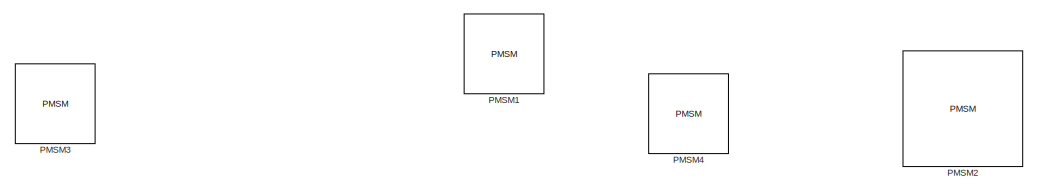
[diagram: root canvas - part 1/4, top center region]
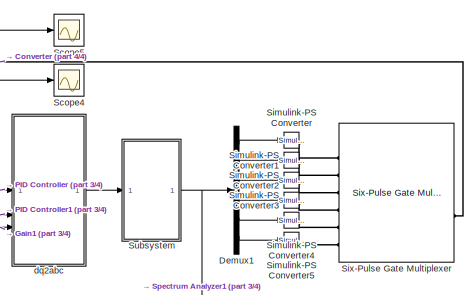
[diagram: root canvas - part 2/4, middle right region]
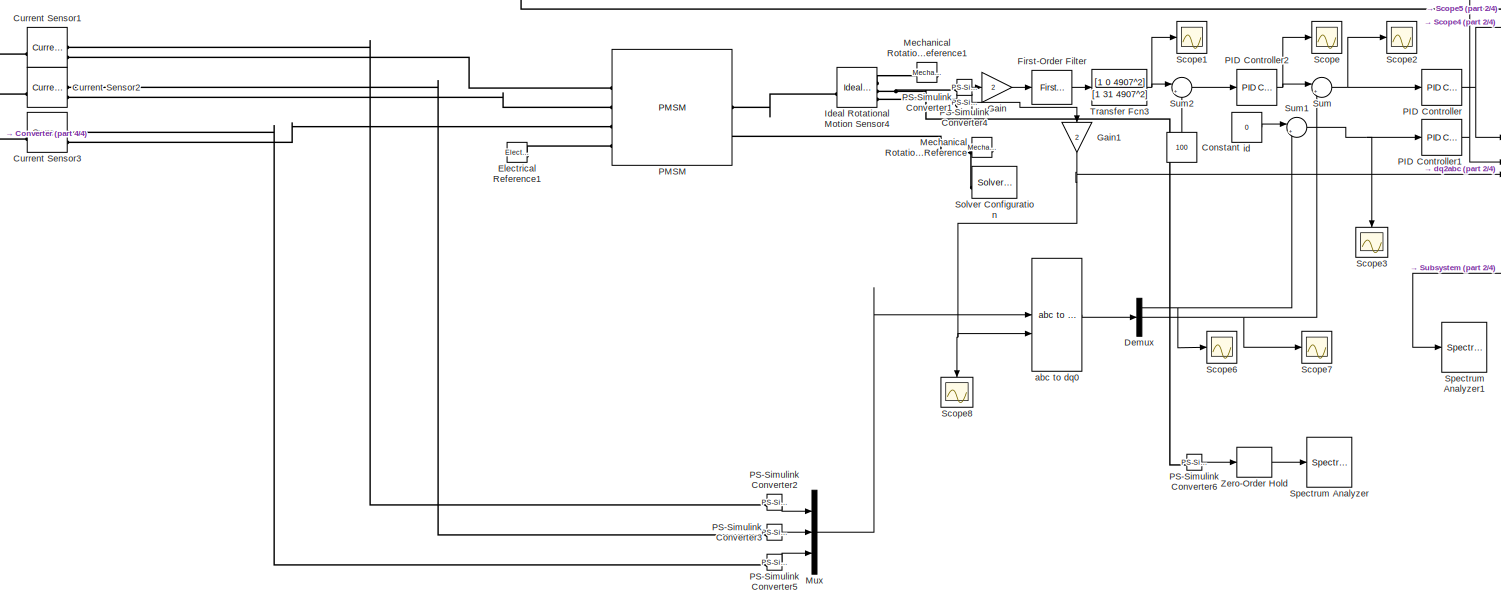
[diagram: root canvas - part 3/4, central region]
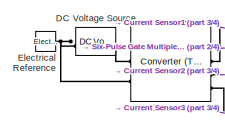
[diagram: root canvas - part 4/4, middle left region]
MODEL slx_4037d44341bd
KIND model
CONFIG AbsTol = auto
CONFIG EnableMultiTasking = off
CONFIG FixedStep = auto
CONFIG MaxStep = auto
CONFIG MinStep = auto
CONFIG RelTol = 1e-3
CONFIG SampleTimeConstraint = Unconstrained
CONFIG SolverName = VariableStepAuto
CONFIG StartTime = 0.0
CONFIG StopTime = 1
BLOCK [Constant] Constant
  NameLocation = right
  Value = 100
BLOCK [Reference] Converter  REF=ee_lib/Semiconductors &
Converters/Converters/Converter
(Three-Phase)
  SourceBlock = ee_lib/Semiconductors &\nConverters/Converters/Converter\n(Three-Phase)
  SourceType = Converter\n(Three-Phase)
BLOCK [Reference] Current Sensor1  REF=fl_lib/Electrical/Electrical Sensors/Current Sensor
  SourceBlock = fl_lib/Electrical/Electrical Sensors/Current Sensor
  SourceType = Current Sensor
BLOCK [Reference] Current Sensor2  REF=fl_lib/Electrical/Electrical Sensors/Current Sensor
  SourceBlock = fl_lib/Electrical/Electrical Sensors/Current Sensor
  SourceType = Current Sensor
BLOCK [Reference] Current Sensor3  REF=fl_lib/Electrical/Electrical Sensors/Current Sensor
  SourceBlock = fl_lib/Electrical/Electrical Sensors/Current Sensor
  SourceType = Current Sensor
BLOCK [Reference] DC Voltage Source  REF=fl_lib/Electrical/Electrical Sources/DC Voltage Source
  NameLocation = top
  SourceBlock = fl_lib/Electrical/Electrical Sources/DC Voltage Source
  SourceType = DC Voltage Source
BLOCK [Demux] Demux
  Outputs = 3
BLOCK [Demux] Demux1
  Outputs = 6
BLOCK [Reference] Electrical Reference  REF=fl_lib/Electrical/Electrical Elements/Electrical Reference
  SourceBlock = fl_lib/Electrical/Electrical Elements/Electrical Reference
  SourceType = Electrical Reference
BLOCK [Reference] Electrical Reference1  REF=fl_lib/Electrical/Electrical Elements/Electrical Reference
  SourceBlock = fl_lib/Electrical/Electrical Elements/Electrical Reference
  SourceType = Electrical Reference
BLOCK [Reference] First-Order Filter  REF=spsFirstOrderFilterLib/First-Order
Filter
  LibrarySourceBlock = sps_lib/Control/Filters/First-Order\nFilter
  SourceBlock = spsFirstOrderFilterLib/First-Order\nFilter
  SourceType = First-Order Filter
BLOCK [Gain] Gain
  Gain = 2
BLOCK [Gain] Gain1
  Gain = 2
  NameLocation = left
BLOCK [Reference] Ideal Rotational Motion Sensor4  REF=fl_lib/Mechanical/Mechanical Sensors/Ideal Rotational
Motion Sensor
  SourceBlock = fl_lib/Mechanical/Mechanical Sensors/Ideal Rotational\nMotion Sensor
  SourceType = Ideal Rotational\nMotion Sensor
BLOCK [Reference] Mechanical Rotational Reference  REF=fl_lib/Mechanical/Rotational Elements/Mechanical
Rotational Reference
  NameLocation = right
  SourceBlock = fl_lib/Mechanical/Rotational Elements/Mechanical\nRotational Reference
  SourceType = Mechanical\nRotational Reference
BLOCK [Reference] Mechanical Rotational Reference1  REF=fl_lib/Mechanical/Rotational Elements/Mechanical
Rotational Reference
  NameLocation = top
  SourceBlock = fl_lib/Mechanical/Rotational Elements/Mechanical\nRotational Reference
  SourceType = Mechanical\nRotational Reference
BLOCK [Mux] Mux
  DisplayOption = bar
  Inputs = 3
BLOCK [Reference] PID Controller  REF=slpidlib/PID Controller
  SourceBlock = slpidlib/PID Controller
  SourceType = PID 1dof
BLOCK [Reference] PID Controller1  REF=slpidlib/PID Controller
  SourceBlock = slpidlib/PID Controller
  SourceType = PID 1dof
BLOCK [Reference] PID Controller2  REF=slpidlib/PID Controller
  SourceBlock = slpidlib/PID Controller
  SourceType = PID 1dof
BLOCK [Reference] PMSM  REF=ee_lib/Electromechanical/Permanent Magnet/PMSM
  SourceBlock = ee_lib/Electromechanical/Permanent Magnet/PMSM
  SourceType = PMSM
BLOCK [Reference] PMSM1  REF=ee_lib/Electromechanical/Permanent Magnet/PMSM
  SourceBlock = ee_lib/Electromechanical/Permanent Magnet/PMSM
  SourceType = PMSM
BLOCK [Reference] PMSM2  REF=ee_lib/Electromechanical/Permanent Magnet/PMSM
  Commented = on
  SourceBlock = ee_lib/Electromechanical/Permanent Magnet/PMSM
  SourceType = PMSM
BLOCK [Reference] PMSM3  REF=ee_lib/Electromechanical/Permanent Magnet/PMSM
  SourceBlock = ee_lib/Electromechanical/Permanent Magnet/PMSM
  SourceType = PMSM
BLOCK [Reference] PMSM4  REF=ee_lib/Electromechanical/Permanent Magnet/PMSM
  SourceBlock = ee_lib/Electromechanical/Permanent Magnet/PMSM
  SourceType = PMSM
BLOCK [Reference] PS-Simulink Converter1  REF=nesl_utility/PS-Simulink
Converter
  SourceBlock = nesl_utility/PS-Simulink\nConverter
  SourceType = PS-Simulink\nConverter
BLOCK [Reference] PS-Simulink Converter2  REF=nesl_utility/PS-Simulink
Converter
  SourceBlock = nesl_utility/PS-Simulink\nConverter
  SourceType = PS-Simulink\nConverter
BLOCK [Reference] PS-Simulink Converter3  REF=nesl_utility/PS-Simulink
Converter
  SourceBlock = nesl_utility/PS-Simulink\nConverter
  SourceType = PS-Simulink\nConverter
BLOCK [Reference] PS-Simulink Converter4  REF=nesl_utility/PS-Simulink
Converter
  SourceBlock = nesl_utility/PS-Simulink\nConverter
  SourceType = PS-Simulink\nConverter
BLOCK [Reference] PS-Simulink Converter5  REF=nesl_utility/PS-Simulink
Converter
  SourceBlock = nesl_utility/PS-Simulink\nConverter
  SourceType = PS-Simulink\nConverter
BLOCK [Reference] PS-Simulink Converter6  REF=nesl_utility/PS-Simulink
Converter
  Commented = on
  SourceBlock = nesl_utility/PS-Simulink\nConverter
  SourceType = PS-Simulink\nConverter
BLOCK [Scope] Scope
  ActiveDisplayYMaximum = 6.4401689493267584
  ActiveDisplayYMinimum = -56.272513704605565
  Floating = off
  GraphicalSettings = {"AxesScalingProperties":{"AlignXAxis":"Center","AlignYAxis":"Center","AutoScaleXAxisLimits":false,"AxesScaling":"Manual","AxesScalingNumUpdates":10,"ExpandOnly":true,"ScaleAxesLimitsAtStop":false,"XAxisDataRange":100,"YAxisDataRange":80},"DisplayProperties":{"ColorOrder":["auto","auto","auto","auto","auto","auto","auto","auto","auto","auto","auto","auto","auto","auto","auto","auto","auto","auto",...<+1990ch>
  MultipleDisplayCache = [{"MaxYLimMag":56.272513704605565,"MaxYLimReal":6.4401689493267584,"MinYLimMag":0,"MinYLimReal":-56.272513704605565,"PlotAsMagnitudePhase":false,"ShowGrid":true,"ShowLegend":false,"Title":"%<SignalLabel>","YLabel":""}]
  NumInputPorts = 1
  ScopeFrameLocation = window
  WasSavedAsWebScope = on
  WindowPosition = [680.000000,330.000000,560.000000,420.000000,]
BLOCK [Scope] Scope1
  ActiveDisplayYMaximum = 112.86641001317616
  ActiveDisplayYMinimum = -12.543542289285257
  ContainerLayout = {"WindowBounds":[198,170,1296,807]}
  DataLoggingVariableName = ScopeData1
  Floating = off
  GraphicalSettings = {"Style":{"BackgroundColor":[0.12941176470588237,0.12941176470588237,0.12941176470588237],"AxesColor":[0.07058823529411765,0.07058823529411765,0.07058823529411765],"LabelsColor":[0.8509803921568627,0.8509803921568627,0.8509803921568627],"PreserveColors":false,"Visible":[true],"LineStyle":["-"],"LineWidth":[1.5],"BarWidth":[0.9],"LineColor":["auto"],"LineFaceAlpha":[1],"LineEdgeAlpha":[1],"Marker":...<+1998ch>
  MultipleDisplayCache = [{"MaxYLimMag":112.86641001317616,"MaxYLimReal":112.86641001317616,"MinYLimMag":0,"MinYLimReal":-12.543542289285257,"PlotAsMagnitudePhase":false,"ShowGrid":true,"ShowLegend":false,"Title":"%<SignalLabel>","YLabel":""}]
  NumInputPorts = 1
  ScopeFrameLocation = container
  Visible = on
  WasSavedAsWebScope = on
  WindowPosition = [198.000000,103.000000,1296.000000,807.000000,]
BLOCK [Scope] Scope2
  ActiveDisplayYMaximum = 67.950415528549641
  ActiveDisplayYMinimum = -69.428521981292022
  DataLoggingVariableName = ScopeData2
  Floating = off
  GraphicalSettings = {"Style":{"BackgroundColor":[0.12941176470588237,0.12941176470588237,0.12941176470588237],"AxesColor":[0.07058823529411765,0.07058823529411765,0.07058823529411765],"LabelsColor":[0.8509803921568627,0.8509803921568627,0.8509803921568627],"PreserveColors":false,"Visible":[true],"LineStyle":["-"],"LineWidth":[1.5],"BarWidth":[0.9],"LineColor":["auto"],"LineFaceAlpha":[1],"LineEdgeAlpha":[1],"Marker":...<+1983ch>
  MultipleDisplayCache = [{"MaxYLimMag":69.428521981292022,"MaxYLimReal":67.950415528549641,"MinYLimMag":0,"MinYLimReal":-69.428521981292022,"PlotAsMagnitudePhase":false,"ShowGrid":true,"ShowLegend":false,"Title":"%<SignalLabel>","YLabel":""}]
  NumInputPorts = 1
  ScopeFrameLocation = window
  WasSavedAsWebScope = on
  WindowPosition = [453.000000,291.000000,560.000000,420.000000,]
BLOCK [Scope] Scope3
  ActiveDisplayYMaximum = 4224.7605293995894
  ActiveDisplayYMinimum = -469.41783659995428
  DataLoggingVariableName = ScopeData3
  Floating = off
  GraphicalSettings = {"Style":{"BackgroundColor":[0.12941176470588237,0.12941176470588237,0.12941176470588237],"AxesColor":[0.07058823529411765,0.07058823529411765,0.07058823529411765],"LabelsColor":[0.8509803921568627,0.8509803921568627,0.8509803921568627],"PreserveColors":false,"Visible":[true],"LineStyle":["-"],"LineWidth":[1.5],"BarWidth":[0.9],"LineColor":["auto"],"LineFaceAlpha":[1],"LineEdgeAlpha":[1],"Marker":...<+1983ch>
  MultipleDisplayCache = [{"MaxYLimMag":4224.7605293995894,"MaxYLimReal":4224.7605293995894,"MinYLimMag":0,"MinYLimReal":-469.41783659995428,"PlotAsMagnitudePhase":false,"ShowGrid":true,"ShowLegend":false,"Title":"%<SignalLabel>","YLabel":""}]
  NameLocation = left
  NumInputPorts = 1
  ScopeFrameLocation = window
  WasSavedAsWebScope = on
  WindowPosition = [755.000000,331.000000,560.000000,420.000000,]
BLOCK [Scope] Scope4
  ActiveDisplayYMaximum = 40.614191035791251
  ActiveDisplayYMinimum = -38.108792595971231
  DataLoggingVariableName = ScopeData4
  Floating = off
  GraphicalSettings = {"AxesScalingProperties":{"AlignXAxis":"Center","AlignYAxis":"Center","AutoScaleXAxisLimits":false,"AxesScaling":"Manual","AxesScalingNumUpdates":10,"ExpandOnly":true,"ScaleAxesLimitsAtStop":false,"XAxisDataRange":100,"YAxisDataRange":80},"DisplayProperties":{"ColorOrder":["auto","auto","auto","auto","auto","auto","auto","auto","auto","auto","auto","auto","auto","auto","auto","auto","auto","auto",...<+2006ch>
  MultipleDisplayCache = [{"MaxYLimMag":40.614191035791251,"MaxYLimReal":40.614191035791251,"MinYLimMag":0,"MinYLimReal":-38.108792595971231,"PlotAsMagnitudePhase":false,"ShowGrid":true,"ShowLegend":false,"Title":"%<SignalLabel>","YLabel":""}]
  NumInputPorts = 1
  ScopeFrameLocation = window
  WasSavedAsWebScope = on
  WindowPosition = [585.000000,283.000000,560.000000,420.000000,]
BLOCK [Scope] Scope5
  ActiveDisplayYMaximum = 22.53472984137111
  ActiveDisplayYMinimum = -24.637588526500757
  DataLoggingVariableName = ScopeData5
  Floating = off
  GraphicalSettings = {"AxesScalingProperties":{"AlignXAxis":"Center","AlignYAxis":"Center","AutoScaleXAxisLimits":false,"AxesScaling":"Manual","AxesScalingNumUpdates":10,"ExpandOnly":true,"ScaleAxesLimitsAtStop":false,"XAxisDataRange":100,"YAxisDataRange":80},"DisplayProperties":{"ColorOrder":["auto","auto","auto","auto","auto","auto","auto","auto","auto","auto","auto","auto","auto","auto","auto","auto","auto","auto",...<+2007ch>
  MultipleDisplayCache = [{"MaxYLimMag":40.328144613282454,"MaxYLimReal":22.53472984137111,"MinYLimMag":0,"MinYLimReal":-24.637588526500757,"PlotAsMagnitudePhase":false,"ShowGrid":true,"ShowLegend":false,"Title":"%<SignalLabel>","YLabel":""}]
  NumInputPorts = 1
  ScopeFrameLocation = window
  WasSavedAsWebScope = on
  WindowPosition = [854.000000,244.000000,560.000000,420.000000,]
BLOCK [Scope] Scope6
  ActiveDisplayYMaximum = 1776.8392107438344
  ActiveDisplayYMinimum = -1437.9474938047751
  DataLoggingVariableName = ScopeData6
  Floating = off
  GraphicalSettings = {"Style":{"BackgroundColor":[0.12941176470588237,0.12941176470588237,0.12941176470588237],"AxesColor":[0.07058823529411765,0.07058823529411765,0.07058823529411765],"LabelsColor":[0.8509803921568627,0.8509803921568627,0.8509803921568627],"PreserveColors":false,"Visible":[true],"LineStyle":["-"],"LineWidth":[1.5],"BarWidth":[0.9],"LineColor":["auto"],"LineFaceAlpha":[1],"LineEdgeAlpha":[1],"Marker":...<+1890ch>
  MultipleDisplayCache = [{"MaxYLimMag":1776.8392107438344,"MaxYLimReal":1776.8392107438344,"MinYLimMag":0,"MinYLimReal":-1437.9474938047751,"PlotAsMagnitudePhase":false,"ShowGrid":true,"ShowLegend":false,"Title":"%<SignalLabel>","YLabel":""}]
  NumInputPorts = 1
  ScopeFrameLocation = window
  WasSavedAsWebScope = on
  WindowPosition = [638.000000,329.000000,560.000000,420.000000,]
BLOCK [Scope] Scope7
  ActiveDisplayYMaximum = 1.0409285736394622
  ActiveDisplayYMinimum = -2.8426588150958878
  DataLoggingVariableName = ScopeData7
  Floating = off
  GraphicalSettings = {"Style":{"BackgroundColor":[0.12941176470588237,0.12941176470588237,0.12941176470588237],"AxesColor":[0.07058823529411765,0.07058823529411765,0.07058823529411765],"LabelsColor":[0.8509803921568627,0.8509803921568627,0.8509803921568627],"PreserveColors":false,"Visible":[true],"LineStyle":["-"],"LineWidth":[1.5],"BarWidth":[0.9],"LineColor":["auto"],"LineFaceAlpha":[1],"LineEdgeAlpha":[1],"Marker":...<+1988ch>
  MultipleDisplayCache = [{"MaxYLimMag":2.8426588150958878,"MaxYLimReal":1.0409285736394622,"MinYLimMag":0,"MinYLimReal":-2.8426588150958878,"PlotAsMagnitudePhase":false,"ShowGrid":true,"ShowLegend":false,"Title":"%<SignalLabel>","YLabel":""}]
  NumInputPorts = 1
  ScopeFrameLocation = window
  WasSavedAsWebScope = on
  WindowPosition = [638.000000,329.000000,560.000000,420.000000,]
BLOCK [Scope] Scope8
  ActiveDisplayYMaximum = 10.664194284729955
  ActiveDisplayYMinimum = 10.636225564991161
  DataLoggingVariableName = ScopeData8
  Floating = off
  GraphicalSettings = {"AxesScalingProperties":{"AlignXAxis":"Center","AlignYAxis":"Center","AutoScaleXAxisLimits":false,"AxesScaling":"Manual","AxesScalingNumUpdates":10,"ExpandOnly":true,"ScaleAxesLimitsAtStop":false,"XAxisDataRange":100,"YAxisDataRange":80},"DisplayProperties":{"ColorOrder":["auto","auto","auto","auto","auto","auto","auto","auto","auto","auto","auto","auto","auto","auto","auto","auto","auto","auto",...<+1997ch>
  MultipleDisplayCache = [{"MaxYLimMag":28.919923389358019,"MaxYLimReal":10.664194284729955,"MinYLimMag":0,"MinYLimReal":10.636225564991161,"PlotAsMagnitudePhase":false,"ShowGrid":true,"ShowLegend":false,"Title":"%<SignalLabel>","YLabel":""}]
  NameLocation = left
  NumInputPorts = 1
  ScopeFrameLocation = window
  WasSavedAsWebScope = on
  WindowPosition = [638.000000,329.000000,560.000000,420.000000,]
BLOCK [Reference] Simulink-PS Converter  REF=nesl_utility/Simulink-PS
Converter
  SourceBlock = nesl_utility/Simulink-PS\nConverter
  SourceType = Simulink-PS\nConverter
BLOCK [Reference] Simulink-PS Converter1  REF=nesl_utility/Simulink-PS
Converter
  SourceBlock = nesl_utility/Simulink-PS\nConverter
  SourceType = Simulink-PS\nConverter
BLOCK [Reference] Simulink-PS Converter2  REF=nesl_utility/Simulink-PS
Converter
  SourceBlock = nesl_utility/Simulink-PS\nConverter
  SourceType = Simulink-PS\nConverter
BLOCK [Reference] Simulink-PS Converter3  REF=nesl_utility/Simulink-PS
Converter
  SourceBlock = nesl_utility/Simulink-PS\nConverter
  SourceType = Simulink-PS\nConverter
BLOCK [Reference] Simulink-PS Converter4  REF=nesl_utility/Simulink-PS
Converter
  SourceBlock = nesl_utility/Simulink-PS\nConverter
  SourceType = Simulink-PS\nConverter
BLOCK [Reference] Simulink-PS Converter5  REF=nesl_utility/Simulink-PS
Converter
  SourceBlock = nesl_utility/Simulink-PS\nConverter
  SourceType = Simulink-PS\nConverter
BLOCK [Reference] Six-Pulse Gate Multiplexer  REF=ee_lib/Semiconductors &
Converters/Converters/Six-Pulse Gate
Multiplexer
  SourceBlock = ee_lib/Semiconductors &\nConverters/Converters/Six-Pulse Gate\nMultiplexer
  SourceType = Six-Pulse Gate\nMultiplexer
BLOCK [Reference] Solver Configuration  REF=nesl_utility/Solver
Configuration
  SourceBlock = nesl_utility/Solver\nConfiguration
  SourceType = Solver\nConfiguration
BLOCK [SpectrumAnalyzer] Spectrum Analyzer
  Commented = on
  FrequencyScale = Log
  FrequencySpan = Start and stop frequencies
  GraphicalSettings = {"GraphicalSettings":{"Style":{"BackgroundColor":[0.12941176470588237,0.12941176470588237,0.12941176470588237],"AxesColor":[0.070588235294117646,0.070588235294117646,0.070588235294117646],"LabelsColor":[0.85098039215686272,0.85098039215686272,0.85098039215686272],"PreserveColors":false,"Visible":true,"LineStyle":["-"],"LineWidth":1.5,"BarWidth":0.9,"LineColor":[1,0.90980392156862744,0.392156862745...<+1076ch>
  PlotAsTwoSidedSpectrum = off
  SampleRate = 44.1e3
  ScopeFrameLocation = window
  SelectedToolstripTab = spectrumAnalyzerToolstrip.measurementsTab
  StartFrequency = 0
  StopFrequency = 50000
  WasSavedAsWebScope = on
  WindowInvariantSamplesPerUpdate = on
  WindowPosition = [81.000000,338.000000,800.000000,500.000000,]
  YLimits = [-70.217 67.9199]
BLOCK [SpectrumAnalyzer] Spectrum Analyzer1
  Commented = on
  FrequencyScale = Log
  FrequencySpan = Start and stop frequencies
  GraphicalSettings = {"GraphicalSettings":{"Style":{"BackgroundColor":[0.12941176470588237,0.12941176470588237,0.12941176470588237],"AxesColor":[0.070588235294117646,0.070588235294117646,0.070588235294117646],"LabelsColor":[0.85098039215686272,0.85098039215686272,0.85098039215686272],"PreserveColors":false,"Visible":true,"LineStyle":["-"],"LineWidth":1.5,"BarWidth":0.9,"LineColor":[1,0.90980392156862744,0.392156862745...<+1087ch>
  PlotAsTwoSidedSpectrum = off
  SampleRate = 44.1e3
  ScopeFrameLocation = window
  SelectedToolstripTab = spectrumAnalyzerToolstrip.measurementsTab
  StartFrequency = 0
  StopFrequency = 50000
  WasSavedAsWebScope = on
  WindowInvariantSamplesPerUpdate = on
  WindowPosition = [910.000000,340.000000,800.000000,500.000000,]
  YLimits = [-57.7443 33.0568]
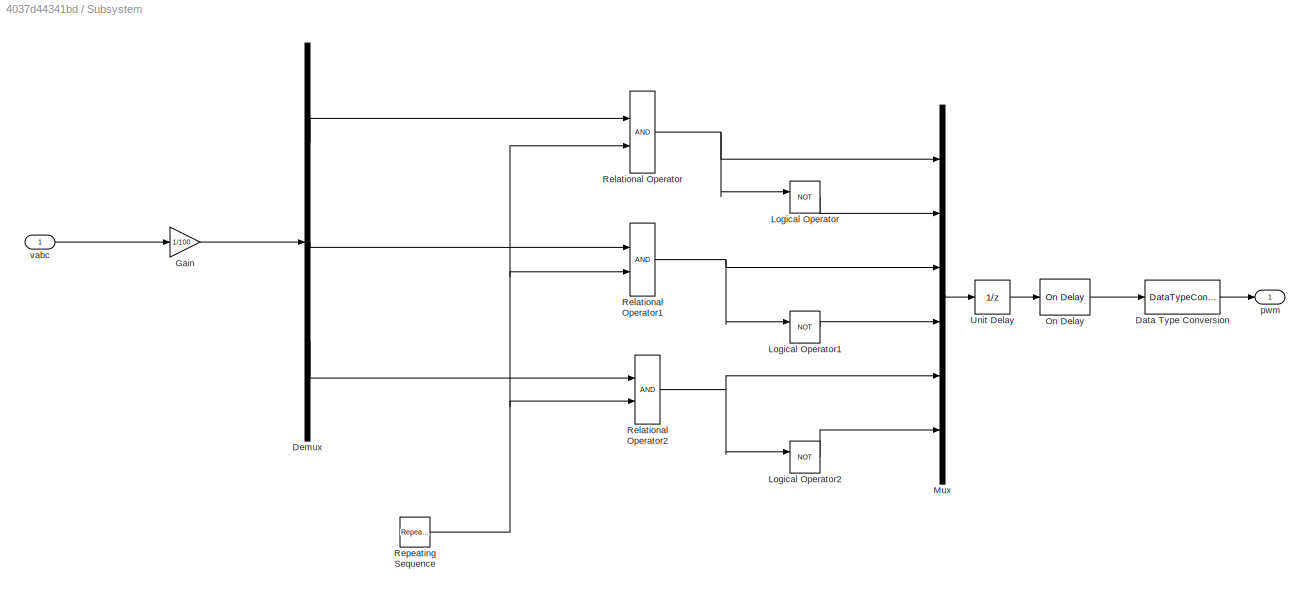
BLOCK [SubSystem] Subsystem
BLOCK [DataTypeConversion] Subsystem/Data Type Conversion
  RndMeth = Floor
  SaturateOnIntegerOverflow = off
BLOCK [Demux] Subsystem/Demux
  Outputs = 3
BLOCK [Gain] Subsystem/Gain
  Gain = 1/100
BLOCK [Logic] Subsystem/Logical Operator
  AllPortsSameDT = off
  Operator = NOT
  OutDataTypeStr = boolean
BLOCK [Logic] Subsystem/Logical Operator1
  AllPortsSameDT = off
  Operator = NOT
  OutDataTypeStr = boolean
BLOCK [Logic] Subsystem/Logical Operator2
  AllPortsSameDT = off
  Operator = NOT
  OutDataTypeStr = boolean
BLOCK [Mux] Subsystem/Mux
  DisplayOption = bar
  Inputs = 6
BLOCK [Reference] Subsystem/On Delay  REF=spsOnDelayLib/On Delay
  LibrarySourceBlock = sps_lib/Control/On Delay
  SourceBlock = spsOnDelayLib/On Delay
  SourceType = On/Off Delay
BLOCK [RelationalOperator] Subsystem/Relational Operator
  InputSameDT = off
  OutDataTypeStr = boolean
  RndMeth = Simplest
BLOCK [RelationalOperator] Subsystem/Relational Operator1
  InputSameDT = off
  OutDataTypeStr = boolean
  RndMeth = Simplest
BLOCK [RelationalOperator] Subsystem/Relational Operator2
  InputSameDT = off
  OutDataTypeStr = boolean
  RndMeth = Simplest
BLOCK [Reference] Subsystem/Repeating Sequence  REF=simulink/Sources/Repeating
Sequence
  SourceBlock = simulink/Sources/Repeating\nSequence
  SourceType = Repeating table
BLOCK [UnitDelay] Subsystem/Unit Delay
  HasFrameUpgradeWarning = on
  SampleTime = -1
BLOCK [Outport] Subsystem/pwm
  VectorParamsAs1DForOutWhenUnconnected = off
BLOCK [Inport] Subsystem/vabc
BLOCK [Sum] Sum
  Inputs = |+-
BLOCK [Sum] Sum1
  Inputs = |+-
BLOCK [Sum] Sum2
  Inputs = |+-
BLOCK [TransferFcn] Transfer Fcn3
  Denominator = [1 31 4907^2]
  Numerator = [1 0 4907^2]
BLOCK [ZeroOrderHold] Zero-Order Hold
  Commented = on
  SampleTime = 1e-6
BLOCK [Reference] abc to dq0  REF=spsabctodq0Lib/abc to dq0
  LibrarySourceBlock = sps_lib/Control/abc to dq0
  SourceBlock = spsabctodq0Lib/abc to dq0
  SourceType = abc to dq0 Transformation
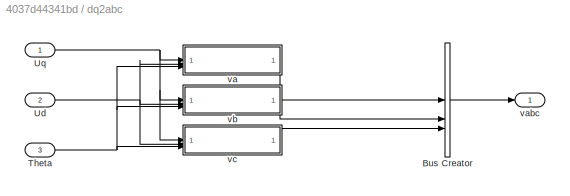
BLOCK [SubSystem] dq2abc
BLOCK [BusCreator] dq2abc/Bus Creator
  DisplayOption = bar
  InheritFromInputs = on
  Inputs = 3
BLOCK [Inport] dq2abc/Theta
  Port = 3
BLOCK [Inport] dq2abc/Ud
  Port = 2
BLOCK [Inport] dq2abc/Uq
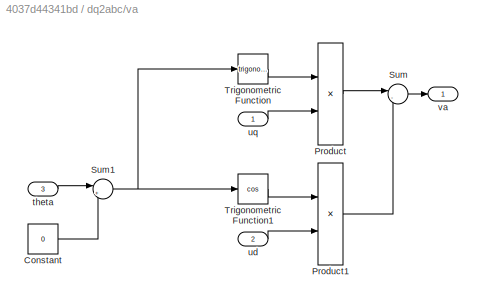
BLOCK [SubSystem] dq2abc/va
BLOCK [Constant] dq2abc/va/Constant
  Value = 0
BLOCK [Product] dq2abc/va/Product
BLOCK [Product] dq2abc/va/Product1
BLOCK [Sum] dq2abc/va/Sum
  Inputs = |-+
BLOCK [Sum] dq2abc/va/Sum1
  Inputs = |++
BLOCK [Trigonometry] dq2abc/va/Trigonometric Function
BLOCK [Trigonometry] dq2abc/va/Trigonometric Function1
  Operator = cos
BLOCK [Inport] dq2abc/va/theta
  NameLocation = top
  Port = 3
BLOCK [Inport] dq2abc/va/ud
  Port = 2
BLOCK [Inport] dq2abc/va/uq
BLOCK [Outport] dq2abc/va/va
  VectorParamsAs1DForOutWhenUnconnected = off
BLOCK [Outport] dq2abc/vabc
  VectorParamsAs1DForOutWhenUnconnected = off
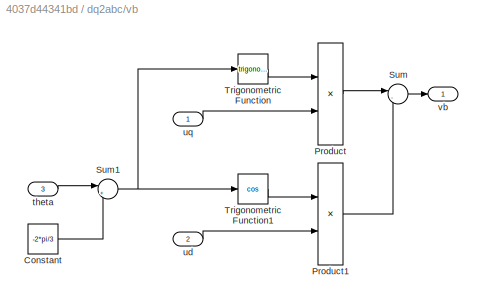
BLOCK [SubSystem] dq2abc/vb
BLOCK [Constant] dq2abc/vb/Constant
  Value = -2*pi/3
BLOCK [Product] dq2abc/vb/Product
BLOCK [Product] dq2abc/vb/Product1
BLOCK [Sum] dq2abc/vb/Sum
  Inputs = |-+
BLOCK [Sum] dq2abc/vb/Sum1
  Inputs = |++
BLOCK [Trigonometry] dq2abc/vb/Trigonometric Function
BLOCK [Trigonometry] dq2abc/vb/Trigonometric Function1
  Operator = cos
BLOCK [Inport] dq2abc/vb/theta
  NameLocation = top
  Port = 3
BLOCK [Inport] dq2abc/vb/ud
  Port = 2
BLOCK [Inport] dq2abc/vb/uq
BLOCK [Outport] dq2abc/vb/vb
  VectorParamsAs1DForOutWhenUnconnected = off
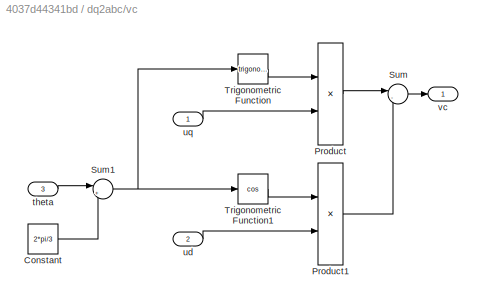
BLOCK [SubSystem] dq2abc/vc
BLOCK [Constant] dq2abc/vc/Constant
  Value = 2*pi/3
BLOCK [Product] dq2abc/vc/Product
BLOCK [Product] dq2abc/vc/Product1
BLOCK [Sum] dq2abc/vc/Sum
  Inputs = |-+
BLOCK [Sum] dq2abc/vc/Sum1
  Inputs = |++
BLOCK [Trigonometry] dq2abc/vc/Trigonometric Function
BLOCK [Trigonometry] dq2abc/vc/Trigonometric Function1
  Operator = cos
BLOCK [Inport] dq2abc/vc/theta
  NameLocation = top
  Port = 3
BLOCK [Inport] dq2abc/vc/ud
  Port = 2
BLOCK [Inport] dq2abc/vc/uq
BLOCK [Outport] dq2abc/vc/vc
  VectorParamsAs1DForOutWhenUnconnected = off
BLOCK [Constant] id
  Value = 0
LINE Constant:1 -> Sum2:2
LINE Demux1:1 -> Simulink-PS Converter:1
LINE Demux1:2 -> Simulink-PS Converter1:1
LINE Demux1:3 -> Simulink-PS Converter2:1
LINE Demux1:4 -> Simulink-PS Converter3:1
LINE Demux1:5 -> Simulink-PS Converter4:1
LINE Demux1:6 -> Simulink-PS Converter5:1
NET Demux:1 -> Scope6:1, Sum1:2
NET Demux:2 -> Scope7:1, Sum:2
LINE First-Order Filter:1 -> Transfer Fcn3:1
NET Gain1:1 -> Scope8:1, abc to dq0:2, dq2abc:3
LINE Gain:1 -> First-Order Filter:1
LINE Mux:1 -> abc to dq0:1
NET PID Controller1:1 -> Scope5:1, dq2abc:2
NET PID Controller2:1 -> Scope:1, Sum:1
NET PID Controller:1 -> Scope4:1, dq2abc:1
LINE PS-Simulink Converter1:1 -> Gain1:1
LINE PS-Simulink Converter2:1 -> Mux:1
LINE PS-Simulink Converter3:1 -> Mux:2
LINE PS-Simulink Converter4:1 -> Gain:1
LINE PS-Simulink Converter5:1 -> Mux:3
LINE PS-Simulink Converter6:1 -> Zero-Order Hold:1
LINE Subsystem/Data Type Conversion:1 -> Subsystem/pwm:1
LINE Subsystem/Demux:1 -> Subsystem/Relational Operator:1
LINE Subsystem/Demux:2 -> Subsystem/Relational Operator1:1
LINE Subsystem/Demux:3 -> Subsystem/Relational Operator2:1
LINE Subsystem/Gain:1 -> Subsystem/Demux:1
LINE Subsystem/Logical Operator1:1 -> Subsystem/Mux:4
LINE Subsystem/Logical Operator2:1 -> Subsystem/Mux:6
LINE Subsystem/Logical Operator:1 -> Subsystem/Mux:2
LINE Subsystem/Mux:1 -> Subsystem/Unit Delay:1
LINE Subsystem/On Delay:1 -> Subsystem/Data Type Conversion:1
NET Subsystem/Relational Operator1:1 -> Subsystem/Logical Operator1:1, Subsystem/Mux:3
NET Subsystem/Relational Operator2:1 -> Subsystem/Logical Operator2:1, Subsystem/Mux:5
NET Subsystem/Relational Operator:1 -> Subsystem/Logical Operator:1, Subsystem/Mux:1
NET Subsystem/Repeating Sequence:1 -> Subsystem/Relational Operator1:2, Subsystem/Relational Operator2:2, Subsystem/Relational Operator:2
LINE Subsystem/Unit Delay:1 -> Subsystem/On Delay:1
LINE Subsystem/vabc:1 -> Subsystem/Gain:1
NET Subsystem:1 -> Demux1:1, Spectrum Analyzer1:1
NET Sum1:1 -> PID Controller1:1, Scope3:1
LINE Sum2:1 -> PID Controller2:1
NET Sum:1 -> PID Controller:1, Scope2:1
NET Transfer Fcn3:1 -> Scope1:1, Sum2:1
LINE Zero-Order Hold:1 -> Spectrum Analyzer:1
LINE abc to dq0:1 -> Demux:1
LINE dq2abc/Bus Creator:1 -> dq2abc/vabc:1
NET dq2abc/Theta:1 -> dq2abc/va:3, dq2abc/vb:3, dq2abc/vc:3
NET dq2abc/Ud:1 -> dq2abc/va:2, dq2abc/vb:2, dq2abc/vc:2
NET dq2abc/Uq:1 -> dq2abc/va:1, dq2abc/vb:1, dq2abc/vc:1
LINE dq2abc/va/Constant:1 -> dq2abc/va/Sum1:2
LINE dq2abc/va/Product1:1 -> dq2abc/va/Sum:2
LINE dq2abc/va/Product:1 -> dq2abc/va/Sum:1
NET dq2abc/va/Sum1:1 -> dq2abc/va/Trigonometric Function1:1, dq2abc/va/Trigonometric Function:1
LINE dq2abc/va/Sum:1 -> dq2abc/va/va:1
LINE dq2abc/va/Trigonometric Function1:1 -> dq2abc/va/Product1:1
LINE dq2abc/va/Trigonometric Function:1 -> dq2abc/va/Product:1
LINE dq2abc/va/theta:1 -> dq2abc/va/Sum1:1
LINE dq2abc/va/ud:1 -> dq2abc/va/Product1:2
LINE dq2abc/va/uq:1 -> dq2abc/va/Product:2
LINE dq2abc/va:1 -> dq2abc/Bus Creator:1
LINE dq2abc/vb/Constant:1 -> dq2abc/vb/Sum1:2
LINE dq2abc/vb/Product1:1 -> dq2abc/vb/Sum:2
LINE dq2abc/vb/Product:1 -> dq2abc/vb/Sum:1
NET dq2abc/vb/Sum1:1 -> dq2abc/vb/Trigonometric Function1:1, dq2abc/vb/Trigonometric Function:1
LINE dq2abc/vb/Sum:1 -> dq2abc/vb/vb:1
LINE dq2abc/vb/Trigonometric Function1:1 -> dq2abc/vb/Product1:1
LINE dq2abc/vb/Trigonometric Function:1 -> dq2abc/vb/Product:1
LINE dq2abc/vb/theta:1 -> dq2abc/vb/Sum1:1
LINE dq2abc/vb/ud:1 -> dq2abc/vb/Product1:2
LINE dq2abc/vb/uq:1 -> dq2abc/vb/Product:2
LINE dq2abc/vb:1 -> dq2abc/Bus Creator:2
LINE dq2abc/vc/Constant:1 -> dq2abc/vc/Sum1:2
LINE dq2abc/vc/Product1:1 -> dq2abc/vc/Sum:2
LINE dq2abc/vc/Product:1 -> dq2abc/vc/Sum:1
NET dq2abc/vc/Sum1:1 -> dq2abc/vc/Trigonometric Function1:1, dq2abc/vc/Trigonometric Function:1
LINE dq2abc/vc/Sum:1 -> dq2abc/vc/vc:1
LINE dq2abc/vc/Trigonometric Function1:1 -> dq2abc/vc/Product1:1
LINE dq2abc/vc/Trigonometric Function:1 -> dq2abc/vc/Product:1
LINE dq2abc/vc/theta:1 -> dq2abc/vc/Sum1:1
LINE dq2abc/vc/ud:1 -> dq2abc/vc/Product1:2
LINE dq2abc/vc/uq:1 -> dq2abc/vc/Product:2
LINE dq2abc/vc:1 -> dq2abc/Bus Creator:3
LINE dq2abc:1 -> Subsystem:1
LINE id:1 -> Sum1:1
PLINE Converter:LConn1 -- Six-Pulse Gate Multiplexer:RConn1
PLINE Converter:LConn2 -- Current Sensor1:LConn1
PLINE Converter:LConn3 -- Current Sensor2:LConn1
PLINE Converter:LConn4 -- Current Sensor3:LConn1
PLINE Converter:RConn1 -- DC Voltage Source:LConn1
PNET net1: Converter:RConn2 -- DC Voltage Source:RConn1 -- Electrical Reference:LConn1
PLINE Current Sensor1:RConn1 -- PS-Simulink Converter2:LConn1
PLINE Current Sensor1:RConn2 -- PMSM:LConn1
PLINE Current Sensor2:RConn1 -- PS-Simulink Converter3:LConn1
PLINE Current Sensor2:RConn2 -- PMSM:LConn2
PLINE Current Sensor3:RConn1 -- PS-Simulink Converter5:LConn1
PLINE Current Sensor3:RConn2 -- PMSM:LConn3
PLINE Electrical Reference1:LConn1 -- PMSM:LConn4
PLINE Ideal Rotational Motion Sensor4:LConn1 -- PMSM:RConn1
PLINE Ideal Rotational Motion Sensor4:RConn1 -- Mechanical Rotational Reference1:LConn1
PNET net2: Ideal Rotational Motion Sensor4:RConn2 -- PS-Simulink Converter4:LConn1 -- PS-Simulink Converter6:LConn1
PLINE Ideal Rotational Motion Sensor4:RConn3 -- PS-Simulink Converter1:LConn1
PNET net3: Mechanical Rotational Reference:LConn1 -- PMSM:RConn2 -- Solver Configuration:RConn1
PLINE Simulink-PS Converter1:RConn1 -- Six-Pulse Gate Multiplexer:LConn2
PLINE Simulink-PS Converter2:RConn1 -- Six-Pulse Gate Multiplexer:LConn3
PLINE Simulink-PS Converter3:RConn1 -- Six-Pulse Gate Multiplexer:LConn4
PLINE Simulink-PS Converter4:RConn1 -- Six-Pulse Gate Multiplexer:LConn5
PLINE Simulink-PS Converter5:RConn1 -- Six-Pulse Gate Multiplexer:LConn6
PLINE Simulink-PS Converter:RConn1 -- Six-Pulse Gate Multiplexer:LConn1
note: NET lines group one-source signal fan-out (src -> all destinations, sorted); 1:1 wires keep LINE; PNET lines group multi-terminal physical nets as a canonical sorted terminal list (undirected conserving connections); 2-terminal nets keep the pairwise PLINE form
